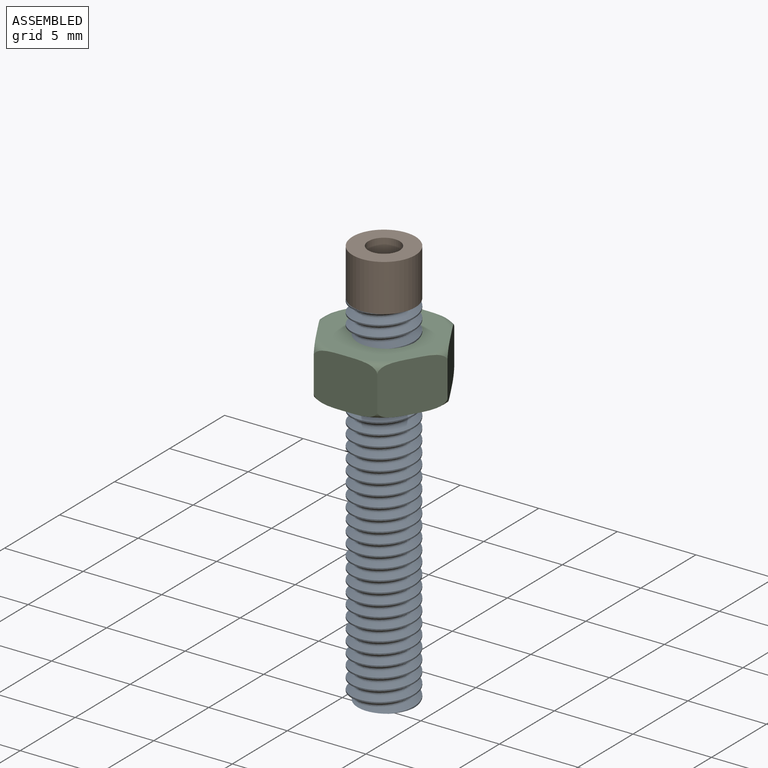
[diagram: assembled view]
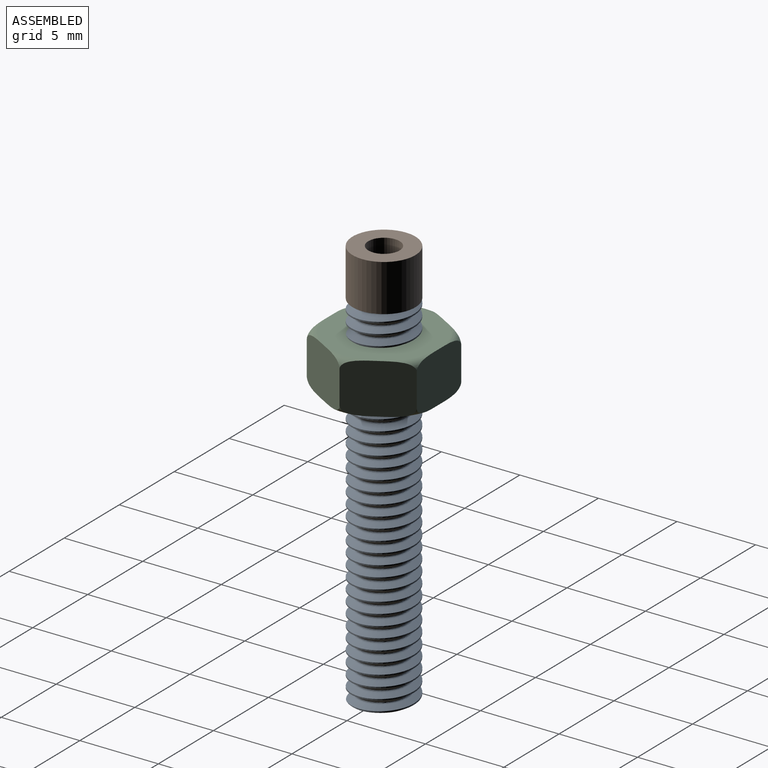
[diagram: assembled view, second angle]
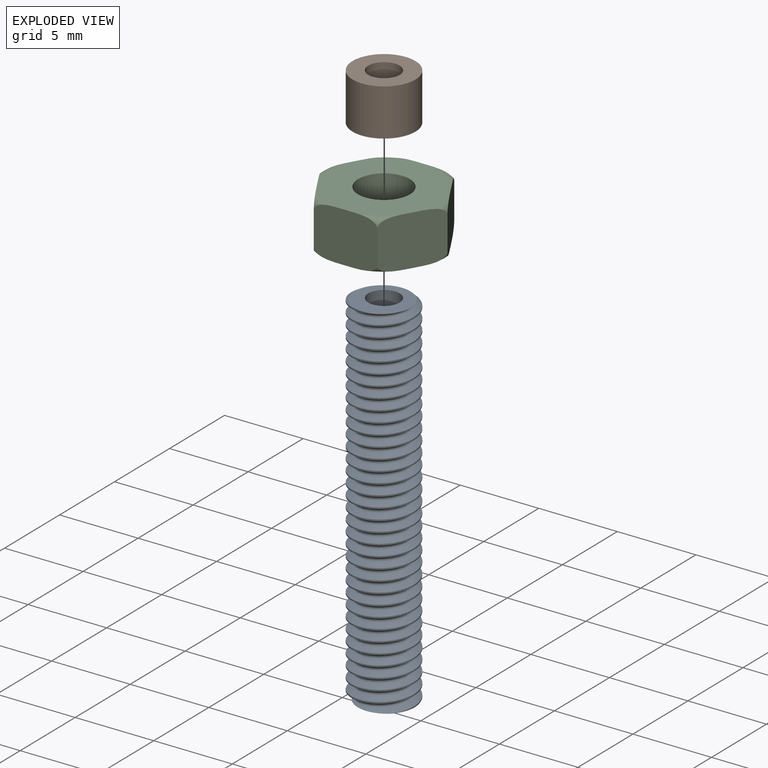
[diagram: exploded view]
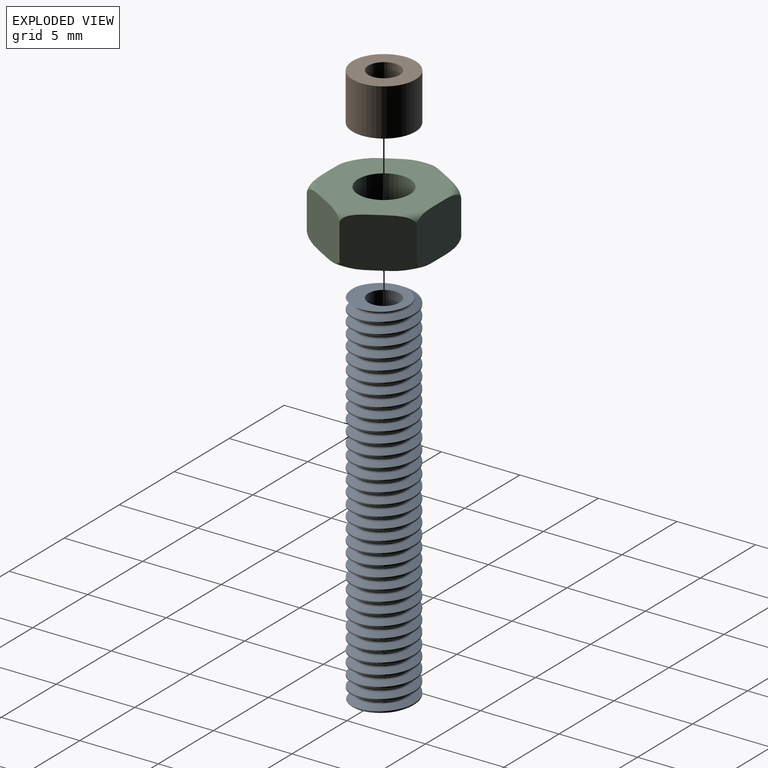
[diagram: exploded view, second angle]
ASSEMBLY  parts=3 mates=2
PART A: 8 faces, bbox 4.7x23.8x4.6 mm
  f0: cylinder r=1mm len=23mm, axis (0,-1,0), area 144.5mm2, adj f6,f7
  f1: bspline ~23.3x3.64mm, area 34.3mm2, adj f2,f5,f6,f7
  f2: bspline ~23.55x4.5mm, area 163.9mm2, adj f1,f3,f6,f7
  f3: cylinder r=2mm len=23mm, axis (0,-1,0), area 77.4mm2, adj f2,f4,f6,f7
  f4: bspline ~23.55x4.5mm, area 164.9mm2, adj f3,f5,f6,f7
  f5: bspline ~23.3x3.64mm, area 34.5mm2, adj f1,f4,f6,f7
  f6: plane 3.77x3.77mm, normal (0,-1,0), area 6.9mm2, adj f0,f1,f2,f3,f4,f5
  f7: plane 3.78x3.77mm, normal (0,1,0), area 6.9mm2, adj f0,f1,f2,f3,f4,f5
PART B: 4 faces, bbox 4x4x3 mm
  f0: cylinder r=1mm len=3mm, axis (0,0,-1), area 18.8mm2, adj f2,f3
  f1: cylinder r=2mm len=4mm, axis (0,0,-1), area 37.7mm2, adj f2,f3
  f2: plane 4x4mm, normal (0,0,1), area 9.4mm2, adj f0,f1
  f3: plane 4x4mm, normal (0,0,-1), area 9.4mm2, adj f0,f1
PART C: 21 faces, bbox 8.7x8.7x3.2 mm
  f0: plane 7x7mm, normal (0,0,-1), area 29.9mm2, adj f1,f3,f4,f7,f9,f11,f13
  f1: cylinder r=1.65mm len=3.3mm, axis (0,0,-1), area 33.2mm2, adj f0,f2
  f2: plane 7x7mm, normal (0,0,1), area 29.9mm2, adj f1,f5,f6,f8,f10,f12,f14
  f3: torus R=3.5mm, axis (0,0,1), area 0.7mm2, adj f0,f15,f20
  f4: torus R=3.5mm, axis (0,0,1), area 0.7mm2, adj f0,f15,f16
  f5: torus R=3.5mm, axis (0,0,1), area 0.7mm2, adj f2,f15,f20
  f6: torus R=3.5mm, axis (0,0,1), area 0.7mm2, adj f2,f15,f16
  f7: torus R=3.5mm, axis (0,0,1), area 0.7mm2, adj f0,f16,f17
  f8: torus R=3.5mm, axis (0,0,1), area 0.7mm2, adj f2,f16,f17
  f9: torus R=3.5mm, axis (0,0,1), area 0.7mm2, adj f0,f17,f18
  f10: torus R=3.5mm, axis (0,0,1), area 0.7mm2, adj f2,f17,f18
  f11: torus R=3.5mm, axis (0,0,1), area 0.7mm2, adj f0,f18,f19
  f12: torus R=3.5mm, axis (0,0,1), area 0.7mm2, adj f2,f18,f19
  f13: torus R=3.5mm, axis (0,0,1), area 0.7mm2, adj f0,f19,f20
  f14: torus R=3.5mm, axis (0,0,1), area 0.7mm2, adj f2,f19,f20
  f15: plane 3.5x3.2mm, normal (-0.87,-0.5,0), area 12.4mm2, adj f3,f4,f5,f6,f16,f20
  f16: plane 3.5x3.2mm, normal (-0.87,0.5,0), area 12.4mm2, adj f4,f6,f7,f8,f15,f17
  f17: plane 4.04x3.2mm, normal (0,1,0), area 12.4mm2, adj f7,f8,f9,f10,f16,f18
  f18: plane 3.5x3.2mm, normal (0.87,0.5,0), area 12.4mm2, adj f9,f10,f11,f12,f17,f19
  f19: plane 3.5x3.2mm, normal (0.87,-0.5,0), area 12.4mm2, adj f11,f12,f13,f14,f18,f20
  f20: plane 4.04x3.2mm, normal (0,-1,0), area 12.4mm2, adj f3,f5,f13,f14,f15,f19
PLACE A rot(axis=(-1,0,0),90deg) t=(12.32,-14.52,-18.91)mm
PLACE B t=(12.32,-14.52,5.09)mm
PLACE C t=(12.32,-14.52,-0.11)mm
MATE fastened C.f1 <-> A.f0  axis (0,0,-1) through (12.32,-14.52,3.09)mm
MATE fastened A.f0 <-> B.f0  axis (0,0,1) through (12.32,-14.52,5.09)mm
